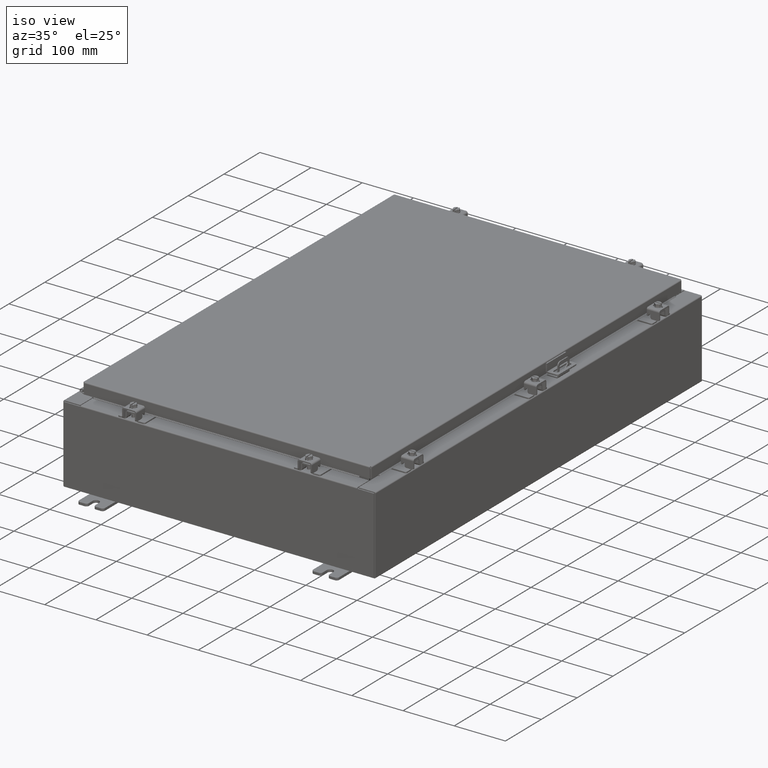
[diagram: clean part render]
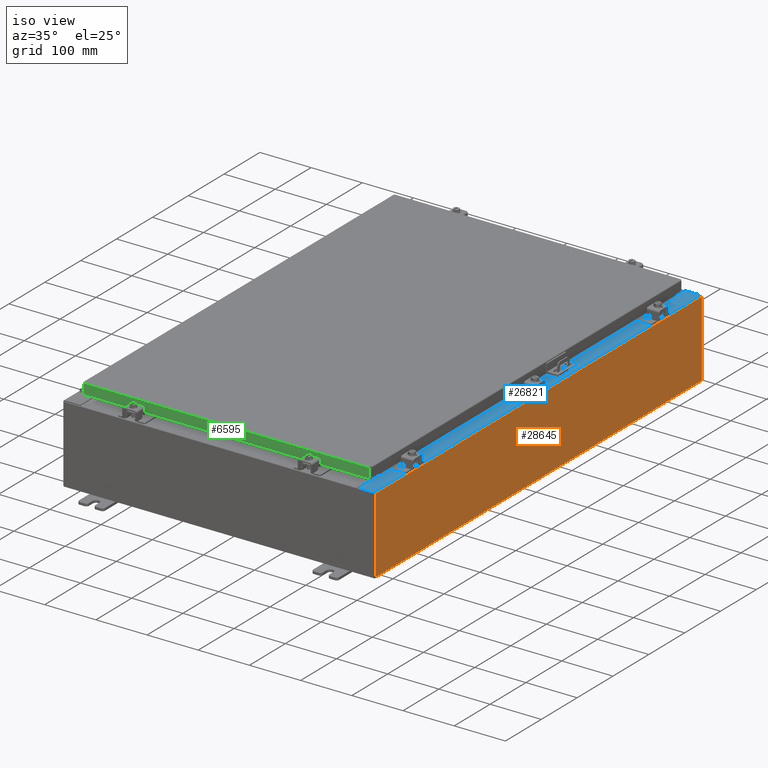
[diagram: same view with three faces highlighted in distinct colors, each labeled with its STEP entity id]
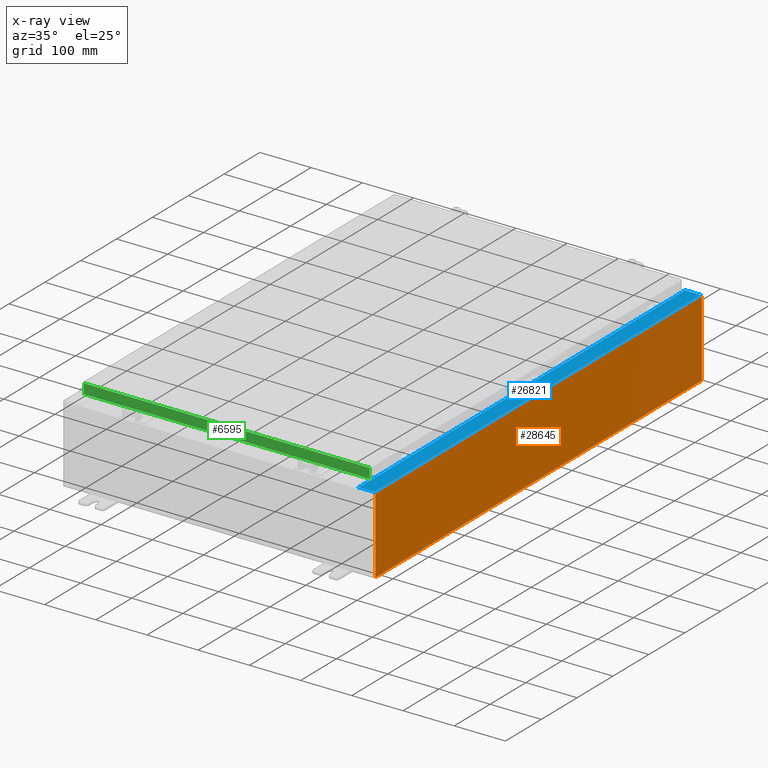
[diagram: x-ray of the same camera — body ghosted, the three highlighted faces saturated]
A machine part, iso view with three faces highlighted in distinct colors.
The next image is the same camera in x-ray (body ghosted, the three faces saturated) — at least one of them is partly hidden behind the body in this view.
Their STEP definitions:

[orange] entity #28645 — the highlighted planar face has unit normal (-1, 0, 0).
#2163 = DIRECTION ( 'NONE',  ( 3.319545939341922800E-015, 0.0000000000000000000, 1.000000000000000000 ) ) ;
#3859 = LINE ( 'NONE', #11993, #11613 ) ;
#4067 = DIRECTION ( 'NONE',  ( -2.023619111371655800E-031, -1.000000000000000000, -6.096072018129156600E-017 ) ) ;
#4139 = CARTESIAN_POINT ( 'NONE',  ( 12.00000000000000200, -17.92530000000000400, 0.01300000000000095200 ) ) ;
#5424 = ORIENTED_EDGE ( 'NONE', *, *, #9964, .T. ) ;
#6121 = PLANE ( 'NONE',  #24326 ) ;
#8249 = EDGE_CURVE ( 'NONE', #11848, #21173, #30195, .T. ) ;
#8807 = CARTESIAN_POINT ( 'NONE',  ( 12.00000000000000200, -17.92530000000000400, -4.009536492811464800E-014 ) ) ;
#9443 = DIRECTION ( 'NONE',  ( -1.000000000000000000, 0.0000000000000000000, 3.319545939341922000E-015 ) ) ;
#9964 = EDGE_CURVE ( 'NONE', #19059, #39011, #20339, .T. ) ;
#10436 = FACE_OUTER_BOUND ( 'NONE', #40133, .T. ) ;
#10528 = VECTOR ( 'NONE', #27183, 39.37007874015748100 ) ;
#11613 = VECTOR ( 'NONE', #2163, 39.37007874015748100 ) ;
#11848 = VERTEX_POINT ( 'NONE', #32286 ) ;
#11993 = CARTESIAN_POINT ( 'NONE',  ( 12.00000000000000200, 17.92529999999999600, -4.009536492811464800E-014 ) ) ;
#11996 = ORIENTED_EDGE ( 'NONE', *, *, #8249, .F. ) ;
#14022 = CARTESIAN_POINT ( 'NONE',  ( 12.00000000000000200, -17.92530000000000400, 0.01299999999999986400 ) ) ;
#14182 = ORIENTED_EDGE ( 'NONE', *, *, #19765, .T. ) ;
#17311 = CARTESIAN_POINT ( 'NONE',  ( 12.00000000000002100, 17.92530000000000000, 5.837600000000001000 ) ) ;
#19059 = VERTEX_POINT ( 'NONE', #24966 ) ;
#19234 = CARTESIAN_POINT ( 'NONE',  ( 12.00000000000000200, 0.0000000000000000000, -4.009536492811464800E-014 ) ) ;
#19765 = EDGE_CURVE ( 'NONE', #11848, #19059, #3859, .T. ) ;
#20339 = LINE ( 'NONE', #17311, #10528 ) ;
#20876 = EDGE_CURVE ( 'NONE', #39011, #21173, #31760, .T. ) ;
#21173 = VERTEX_POINT ( 'NONE', #4139 ) ;
#21834 = ORIENTED_EDGE ( 'NONE', *, *, #20876, .T. ) ;
#24326 = AXIS2_PLACEMENT_3D ( 'NONE', #19234, #9443, #32463 ) ;
#24966 = CARTESIAN_POINT ( 'NONE',  ( 12.00000000000002100, 17.92530000000000000, 5.837600000000001000 ) ) ;
#26272 = CARTESIAN_POINT ( 'NONE',  ( 12.00000000000002100, -17.92530000000000000, 5.837600000000001000 ) ) ;
#27183 = DIRECTION ( 'NONE',  ( -0.0000000000000000000, -1.000000000000000000, -0.0000000000000000000 ) ) ;
#28645 = ADVANCED_FACE ( 'NONE', ( #10436 ), #6121, .F. ) ;
#28666 = DIRECTION ( 'NONE',  ( -3.319545939341922800E-015, 0.0000000000000000000, -1.000000000000000000 ) ) ;
#30195 = LINE ( 'NONE', #14022, #37872 ) ;
#31760 = LINE ( 'NONE', #8807, #32780 ) ;
#32286 = CARTESIAN_POINT ( 'NONE',  ( 12.00000000000000200, 17.92529999999999600, 0.01300000000000205000 ) ) ;
#32463 = DIRECTION ( 'NONE',  ( 3.319545939341922000E-015, 0.0000000000000000000, 1.000000000000000000 ) ) ;
#32780 = VECTOR ( 'NONE', #28666, 39.37007874015748100 ) ;
#37872 = VECTOR ( 'NONE', #4067, 39.37007874015748100 ) ;
#39011 = VERTEX_POINT ( 'NONE', #26272 ) ;
#40133 = EDGE_LOOP ( 'NONE', ( #5424, #21834, #11996, #14182 ) ) ;

[blue] entity #26821 — the highlighted planar face has unit normal (-0, 0, -1).
#1157 = EDGE_CURVE ( 'NONE', #24024, #38441, #33503, .T. ) ;
#1228 = VECTOR ( 'NONE', #31909, 39.37007874015748100 ) ;
#1482 = ORIENTED_EDGE ( 'NONE', *, *, #40471, .F. ) ;
#1930 = CARTESIAN_POINT ( 'NONE',  ( 10.75005000000002100, -16.59375000000000000, 5.925300000000011600 ) ) ;
#2029 = CARTESIAN_POINT ( 'NONE',  ( 10.75005000000002100, 16.63110000000000000, 5.925300000000009800 ) ) ;
#2047 = CIRCLE ( 'NONE', #15947, 0.01867499999999949400 ) ;
#2375 = VERTEX_POINT ( 'NONE', #10780 ) ;
#3180 = ORIENTED_EDGE ( 'NONE', *, *, #39597, .F. ) ;
#3837 = CARTESIAN_POINT ( 'NONE',  ( 10.69970000000002100, -17.92530000000000000, 5.925300000000009800 ) ) ;
#4365 = VECTOR ( 'NONE', #25653, 39.37007874015748100 ) ;
#4582 = ORIENTED_EDGE ( 'NONE', *, *, #30979, .T. ) ;
#5573 = CARTESIAN_POINT ( 'NONE',  ( 10.69970000000002100, -16.63110000000000400, 5.925300000000009800 ) ) ;
#6334 = AXIS2_PLACEMENT_3D ( 'NONE', #14650, #37652, #17988 ) ;
#6390 = CARTESIAN_POINT ( 'NONE',  ( 10.75005000000002100, -16.59375000000000000, 5.925300000000009800 ) ) ;
#7975 = ORIENTED_EDGE ( 'NONE', *, *, #36800, .F. ) ;
#8277 = VECTOR ( 'NONE', #34805, 39.37007874015748100 ) ;
#8512 = EDGE_CURVE ( 'NONE', #2375, #35429, #22950, .T. ) ;
#8770 = VERTEX_POINT ( 'NONE', #27196 ) ;
#8864 = VECTOR ( 'NONE', #16200, 39.37007874015748100 ) ;
#8963 = CARTESIAN_POINT ( 'NONE',  ( 10.75005000000002100, -16.61242500000000200, 5.925300000000011600 ) ) ;
#9156 = VERTEX_POINT ( 'NONE', #32182 ) ;
#10648 = DIRECTION ( 'NONE',  ( 1.000000000000000000, 0.0000000000000000000, 0.0000000000000000000 ) ) ;
#10780 = CARTESIAN_POINT ( 'NONE',  ( 11.91230000000002000, 17.92530000000000000, 5.925300000000001800 ) ) ;
#11531 = EDGE_CURVE ( 'NONE', #32890, #9156, #35146, .T. ) ;
#12384 = VECTOR ( 'NONE', #31006, 39.37007874015748100 ) ;
#13403 = VECTOR ( 'NONE', #37468, 39.37007874015748100 ) ;
#14437 = LINE ( 'NONE', #34143, #13403 ) ;
#14649 = VECTOR ( 'NONE', #23060, 39.37007874015748100 ) ;
#14650 = CARTESIAN_POINT ( 'NONE',  ( 4.252457061909019600E-014, 0.0000000000000000000, 5.925300000000087100 ) ) ;
#15064 = DIRECTION ( 'NONE',  ( -1.000000000000000000, 0.0000000000000000000, 0.0000000000000000000 ) ) ;
#15873 = EDGE_CURVE ( 'NONE', #2375, #38441, #14437, .T. ) ;
#15909 = EDGE_CURVE ( 'NONE', #23008, #40278, #38601, .T. ) ;
#15947 = AXIS2_PLACEMENT_3D ( 'NONE', #39021, #19367, #42268 ) ;
#16200 = DIRECTION ( 'NONE',  ( 1.000000000000000000, 4.340572780400098900E-014, 2.170286390200049500E-014 ) ) ;
#17988 = DIRECTION ( 'NONE',  ( -1.000000000000000000, 0.0000000000000000000, 7.132762385546384700E-015 ) ) ;
#18213 = CARTESIAN_POINT ( 'NONE',  ( 10.69970000000002100, 16.63110000000000000, 5.925300000000009800 ) ) ;
#19367 = DIRECTION ( 'NONE',  ( 7.132762385546384700E-015, 0.0000000000000000000, 1.000000000000000000 ) ) ;
#19763 = CARTESIAN_POINT ( 'NONE',  ( 10.69970000000002100, 0.0000000000000000000, 5.925300000000009800 ) ) ;
#20441 = CIRCLE ( 'NONE', #25993, 0.01867499999999949400 ) ;
#20690 = ORIENTED_EDGE ( 'NONE', *, *, #11531, .F. ) ;
#21143 = EDGE_LOOP ( 'NONE', ( #3180, #4582, #24260, #28681, #24715, #41187, #40292, #1482, #21904, #20690, #32212, #7975 ) ) ;
#21227 = VECTOR ( 'NONE', #15064, 39.37007874015748100 ) ;
#21712 = CARTESIAN_POINT ( 'NONE',  ( 1.056034422168157600E-014, -17.92529999999998200, 5.925300000000087100 ) ) ;
#21904 = ORIENTED_EDGE ( 'NONE', *, *, #41825, .F. ) ;
#22115 = CARTESIAN_POINT ( 'NONE',  ( 10.69970000000002100, 0.0000000000000000000, 5.925300000000009800 ) ) ;
#22950 = LINE ( 'NONE', #41996, #4365 ) ;
#23008 = VERTEX_POINT ( 'NONE', #2029 ) ;
#23060 = DIRECTION ( 'NONE',  ( 0.0000000000000000000, -1.000000000000000000, 0.0000000000000000000 ) ) ;
#23217 = CARTESIAN_POINT ( 'NONE',  ( 10.69970000000002100, 17.92530000000000000, 5.925300000000009800 ) ) ;
#24024 = VERTEX_POINT ( 'NONE', #3837 ) ;
#24260 = ORIENTED_EDGE ( 'NONE', *, *, #1157, .T. ) ;
#24360 = CARTESIAN_POINT ( 'NONE',  ( 10.71270000000002100, 16.59375000000000000, 5.925300000000011600 ) ) ;
#24715 = ORIENTED_EDGE ( 'NONE', *, *, #8512, .T. ) ;
#25653 = DIRECTION ( 'NONE',  ( -1.000000000000000000, 0.0000000000000000000, 7.132762385546384700E-015 ) ) ;
#25993 = AXIS2_PLACEMENT_3D ( 'NONE', #8963, #30377, #10648 ) ;
#26821 = ADVANCED_FACE ( 'NONE', ( #32746 ), #27714, .F. ) ;
#27196 = CARTESIAN_POINT ( 'NONE',  ( 10.75005000000002100, 16.59375000000000000, 5.925300000000009800 ) ) ;
#27503 = LINE ( 'NONE', #22115, #1228 ) ;
#27660 = CARTESIAN_POINT ( 'NONE',  ( 10.75005000000002100, 16.63110000000000000, 5.925300000000011600 ) ) ;
#27677 = DIRECTION ( 'NONE',  ( 1.000000000000000000, 0.0000000000000000000, 0.0000000000000000000 ) ) ;
#27714 = PLANE ( 'NONE',  #6334 ) ;
#28681 = ORIENTED_EDGE ( 'NONE', *, *, #15873, .F. ) ;
#30377 = DIRECTION ( 'NONE',  ( 7.132762385546384700E-015, 0.0000000000000000000, 1.000000000000000000 ) ) ;
#30979 = EDGE_CURVE ( 'NONE', #42409, #24024, #40814, .T. ) ;
#31006 = DIRECTION ( 'NONE',  ( -1.000000000000000000, 4.340572780400098900E-014, -2.170286390200049500E-014 ) ) ;
#31652 = EDGE_CURVE ( 'NONE', #35429, #40278, #27503, .T. ) ;
#31909 = DIRECTION ( 'NONE',  ( 0.0000000000000000000, -1.000000000000000000, 0.0000000000000000000 ) ) ;
#32182 = CARTESIAN_POINT ( 'NONE',  ( 10.71270000000002100, 16.59375000000000000, 5.925300000000011600 ) ) ;
#32212 = ORIENTED_EDGE ( 'NONE', *, *, #33224, .F. ) ;
#32746 = FACE_OUTER_BOUND ( 'NONE', #21143, .T. ) ;
#32890 = VERTEX_POINT ( 'NONE', #36246 ) ;
#33100 = CARTESIAN_POINT ( 'NONE',  ( 11.91230000000002000, -17.92530000000000000, 5.925300000000001800 ) ) ;
#33224 = EDGE_CURVE ( 'NONE', #35326, #32890, #38696, .T. ) ;
#33503 = LINE ( 'NONE', #21712, #8277 ) ;
#34076 = LINE ( 'NONE', #35907, #8864 ) ;
#34102 = VECTOR ( 'NONE', #34684, 39.37007874015748100 ) ;
#34143 = CARTESIAN_POINT ( 'NONE',  ( 11.91230000000002000, -17.92530000000000000, 5.925300000000001800 ) ) ;
#34412 = VERTEX_POINT ( 'NONE', #34668 ) ;
#34668 = CARTESIAN_POINT ( 'NONE',  ( 10.75005000000002100, -16.63110000000000000, 5.925300000000009800 ) ) ;
#34684 = DIRECTION ( 'NONE',  ( -0.0000000000000000000, 1.000000000000000000, -0.0000000000000000000 ) ) ;
#34805 = DIRECTION ( 'NONE',  ( 1.000000000000000000, -1.783190596386596200E-015, -7.132762385546384700E-015 ) ) ;
#35146 = LINE ( 'NONE', #41210, #34102 ) ;
#35326 = VERTEX_POINT ( 'NONE', #6390 ) ;
#35429 = VERTEX_POINT ( 'NONE', #23217 ) ;
#35907 = CARTESIAN_POINT ( 'NONE',  ( 10.69970000000002100, -16.63110000000000400, 5.925300000000009800 ) ) ;
#36246 = CARTESIAN_POINT ( 'NONE',  ( 10.71270000000002100, -16.59375000000000000, 5.925300000000011600 ) ) ;
#36800 = EDGE_CURVE ( 'NONE', #34412, #35326, #20441, .T. ) ;
#36972 = VECTOR ( 'NONE', #27677, 39.37007874015748100 ) ;
#37468 = DIRECTION ( 'NONE',  ( -0.0000000000000000000, -1.000000000000000000, -0.0000000000000000000 ) ) ;
#37652 = DIRECTION ( 'NONE',  ( -7.132762385546384700E-015, 0.0000000000000000000, -1.000000000000000000 ) ) ;
#37999 = LINE ( 'NONE', #24360, #36972 ) ;
#38441 = VERTEX_POINT ( 'NONE', #33100 ) ;
#38601 = LINE ( 'NONE', #27660, #12384 ) ;
#38696 = LINE ( 'NONE', #1930, #21227 ) ;
#39021 = CARTESIAN_POINT ( 'NONE',  ( 10.75005000000002100, 16.61242500000000200, 5.925300000000011600 ) ) ;
#39597 = EDGE_CURVE ( 'NONE', #42409, #34412, #34076, .T. ) ;
#40278 = VERTEX_POINT ( 'NONE', #18213 ) ;
#40292 = ORIENTED_EDGE ( 'NONE', *, *, #15909, .F. ) ;
#40471 = EDGE_CURVE ( 'NONE', #8770, #23008, #2047, .T. ) ;
#40814 = LINE ( 'NONE', #19763, #14649 ) ;
#41187 = ORIENTED_EDGE ( 'NONE', *, *, #31652, .T. ) ;
#41210 = CARTESIAN_POINT ( 'NONE',  ( 10.71270000000002100, -16.59375000000000000, 5.925300000000011600 ) ) ;
#41825 = EDGE_CURVE ( 'NONE', #9156, #8770, #37999, .T. ) ;
#41996 = CARTESIAN_POINT ( 'NONE',  ( 4.252457061909019600E-014, 17.92529999999999600, 5.925300000000087100 ) ) ;
#42268 = DIRECTION ( 'NONE',  ( 1.000000000000000000, 0.0000000000000000000, 0.0000000000000000000 ) ) ;
#42409 = VERTEX_POINT ( 'NONE', #5573 ) ;

[green] entity #6595 — the highlighted planar face has unit normal (-0, 1, -0).
#881 = DIRECTION ( 'NONE',  ( -1.000000000000000000, 4.379057701015053300E-047, 1.233005954894504400E-016 ) ) ;
#905 = LINE ( 'NONE', #23508, #34941 ) ;
#1071 = DIRECTION ( 'NONE',  ( 0.0000000000000000000, -2.818880942772360500E-015, -1.000000000000000000 ) ) ;
#1097 = FACE_OUTER_BOUND ( 'NONE', #27764, .T. ) ;
#2223 = DIRECTION ( 'NONE',  ( -0.0000000000000000000, -2.818880942772360500E-015, -1.000000000000000000 ) ) ;
#3644 = VERTEX_POINT ( 'NONE', #30367 ) ;
#3748 = VERTEX_POINT ( 'NONE', #40609 ) ;
#4230 = LINE ( 'NONE', #20864, #21780 ) ;
#4367 = LINE ( 'NONE', #21999, #12146 ) ;
#4657 = VECTOR ( 'NONE', #881, 39.37007874015748100 ) ;
#4826 = PLANE ( 'NONE',  #32460 ) ;
#5281 = VECTOR ( 'NONE', #35841, 39.37007874015748100 ) ;
#6595 = ADVANCED_FACE ( 'NONE', ( #1097 ), #4826, .F. ) ;
#7111 = DIRECTION ( 'NONE',  ( 1.000000000000000000, 6.951393977153911800E-032, -9.864047639156036200E-017 ) ) ;
#8185 = DIRECTION ( 'NONE',  ( 0.0000000000000000000, 2.818880942772360500E-015, 1.000000000000000000 ) ) ;
#8905 = VECTOR ( 'NONE', #29924, 39.37007874015748100 ) ;
#12146 = VECTOR ( 'NONE', #2223, 39.37007874015748100 ) ;
#13458 = LINE ( 'NONE', #17358, #4657 ) ;
#14220 = EDGE_CURVE ( 'NONE', #39401, #3748, #4230, .T. ) ;
#15011 = ORIENTED_EDGE ( 'NONE', *, *, #14220, .T. ) ;
#15948 = VERTEX_POINT ( 'NONE', #23985 ) ;
#17358 = CARTESIAN_POINT ( 'NONE',  ( 11.07799999999999600, -17.09399999999999800, -0.8499999999999996400 ) ) ;
#17668 = LINE ( 'NONE', #20020, #8905 ) ;
#18285 = CARTESIAN_POINT ( 'NONE',  ( 10.98915786437626700, -17.09399999999999800, -0.08769999999999897300 ) ) ;
#19876 = ORIENTED_EDGE ( 'NONE', *, *, #28425, .F. ) ;
#20020 = CARTESIAN_POINT ( 'NONE',  ( 11.07799999999999600, -17.09399999999999800, -0.8499999999999996400 ) ) ;
#20864 = CARTESIAN_POINT ( 'NONE',  ( -10.98915786437626900, -17.09399999999999800, 4.844676449176230100E-014 ) ) ;
#21780 = VECTOR ( 'NONE', #1071, 39.37007874015748100 ) ;
#21999 = CARTESIAN_POINT ( 'NONE',  ( 10.98915786437626500, -17.09399999999999800, -0.07469999999999978000 ) ) ;
#22823 = LINE ( 'NONE', #25854, #5281 ) ;
#23508 = CARTESIAN_POINT ( 'NONE',  ( 11.07799999999999600, -17.09399999999999800, -0.08770000000000007000 ) ) ;
#23985 = CARTESIAN_POINT ( 'NONE',  ( 10.98915786437626500, -17.09399999999999800, -0.8499999999999996400 ) ) ;
#25854 = CARTESIAN_POINT ( 'NONE',  ( 10.23915786437626200, -17.09399999999999400, -0.8500000000000000900 ) ) ;
#26939 = ORIENTED_EDGE ( 'NONE', *, *, #35462, .F. ) ;
#26948 = VERTEX_POINT ( 'NONE', #28434 ) ;
#26988 = EDGE_CURVE ( 'NONE', #38712, #15948, #4367, .T. ) ;
#27764 = EDGE_LOOP ( 'NONE', ( #26939, #15011, #33690, #34606, #19876, #36204 ) ) ;
#27846 = DIRECTION ( 'NONE',  ( -3.475696988576954900E-031, 1.000000000000000000, -2.818880942772360500E-015 ) ) ;
#28332 = EDGE_CURVE ( 'NONE', #26948, #3644, #22823, .T. ) ;
#28425 = EDGE_CURVE ( 'NONE', #15948, #26948, #17668, .T. ) ;
#28434 = CARTESIAN_POINT ( 'NONE',  ( 10.23915786437626200, -17.09399999999999400, -0.8500000000000000900 ) ) ;
#29924 = DIRECTION ( 'NONE',  ( -1.000000000000000000, 4.379057701015053300E-047, 1.233005954894504400E-016 ) ) ;
#30367 = CARTESIAN_POINT ( 'NONE',  ( -10.23915786437627100, -17.09399999999999400, -0.8500000000000000900 ) ) ;
#31590 = CARTESIAN_POINT ( 'NONE',  ( -10.98915786437627200, -17.09399999999999800, -0.08769999999999787700 ) ) ;
#32460 = AXIS2_PLACEMENT_3D ( 'NONE', #34365, #27846, #8185 ) ;
#33676 = EDGE_CURVE ( 'NONE', #3644, #3748, #13458, .T. ) ;
#33690 = ORIENTED_EDGE ( 'NONE', *, *, #33676, .F. ) ;
#34365 = CARTESIAN_POINT ( 'NONE',  ( 5.941356432273445000E-030, -17.09399999999999800, 4.844676449176230100E-014 ) ) ;
#34606 = ORIENTED_EDGE ( 'NONE', *, *, #28332, .F. ) ;
#34941 = VECTOR ( 'NONE', #7111, 39.37007874015748100 ) ;
#35462 = EDGE_CURVE ( 'NONE', #39401, #38712, #905, .T. ) ;
#35841 = DIRECTION ( 'NONE',  ( -1.000000000000000000, 0.0000000000000000000, 0.0000000000000000000 ) ) ;
#36204 = ORIENTED_EDGE ( 'NONE', *, *, #26988, .F. ) ;
#38712 = VERTEX_POINT ( 'NONE', #18285 ) ;
#39401 = VERTEX_POINT ( 'NONE', #31590 ) ;
#40609 = CARTESIAN_POINT ( 'NONE',  ( -10.98915786437627200, -17.09399999999999800, -0.8499999999999969800 ) ) ;